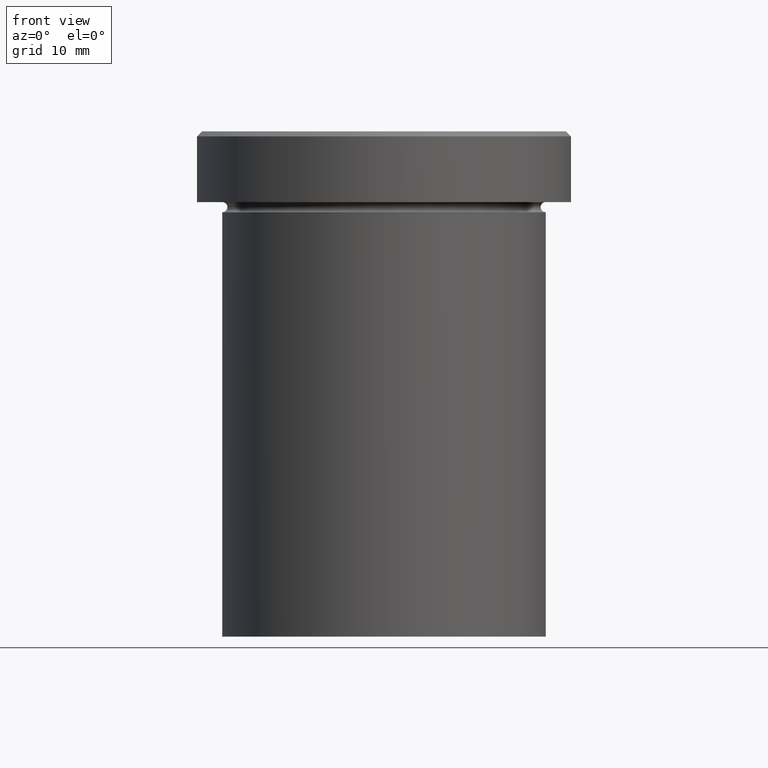
[diagram: clean part render]
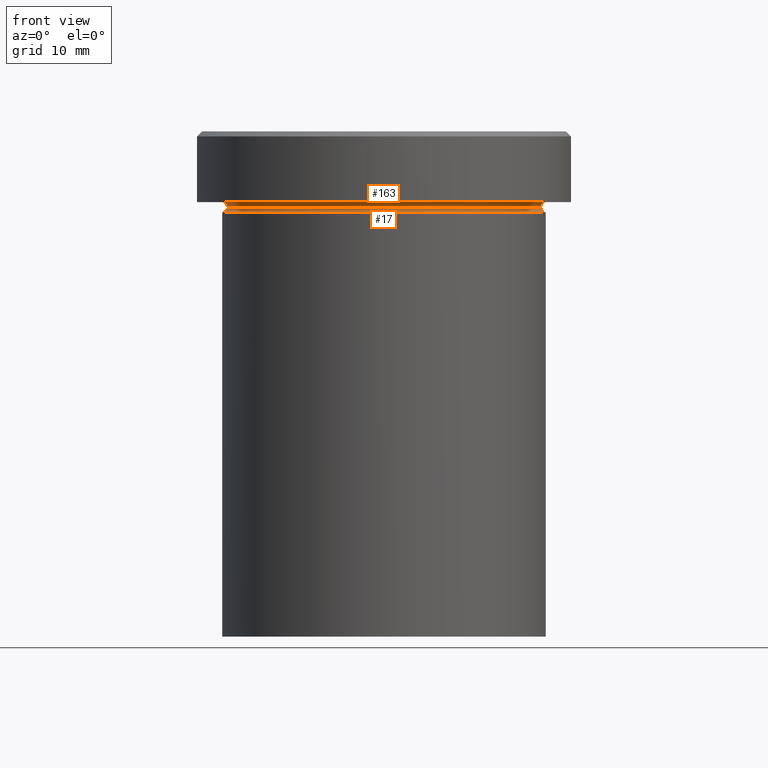
[diagram: same view with one multi-face feature highlighted, each face labeled with its STEP entity id]
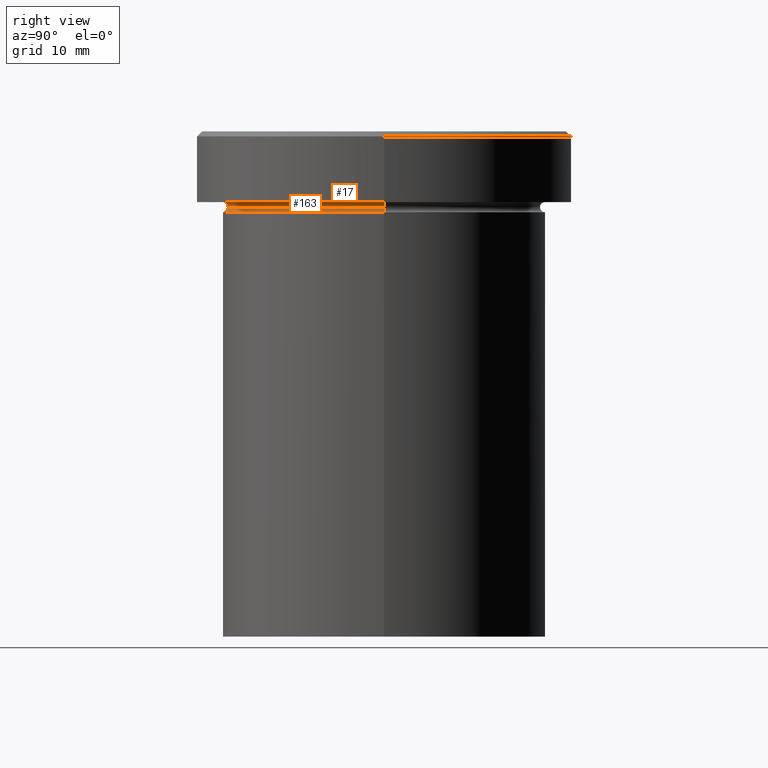
[diagram: same view with one multi-face feature highlighted, each face labeled with its STEP entity id]
A machine part, front view. The highlighted faces form ONE feature: a constant-radius fillet chain: 2 tangent blend faces with common blend radius 0.5 mm. The faces share edges in the B-rep.
A second angle (right view) of the same feature is appended — it is thin or edge-on in the first view.
Their STEP definitions:
[1] entity #163 (Torus):
#3 = AXIS2_PLACEMENT_3D ( 'NONE', #265, #100, #23 ) ;
#11 = CARTESIAN_POINT ( 'NONE',  ( -16.00000000000000000, 0.000000000000000000, -6.999999999999999112 ) ) ;
#16 = AXIS2_PLACEMENT_3D ( 'NONE', #160, #332, #136 ) ;
#23 = DIRECTION ( 'NONE',  ( -1.000000000000000000, 0.000000000000000000, 0.000000000000000000 ) ) ;
#35 = CARTESIAN_POINT ( 'NONE',  ( 0.000000000000000000, 0.000000000000000000, -7.500000000000000000 ) ) ;
#41 = CARTESIAN_POINT ( 'NONE',  ( 0.000000000000000000, 0.000000000000000000, -7.500000000000000000 ) ) ;
#67 = VERTEX_POINT ( 'NONE', #395 ) ;
#70 = VERTEX_POINT ( 'NONE', #227 ) ;
#100 = DIRECTION ( 'NONE',  ( -0.000000000000000000, -0.000000000000000000, 1.000000000000000000 ) ) ;
#103 = AXIS2_PLACEMENT_3D ( 'NONE', #41, #363, #300 ) ;
#136 = DIRECTION ( 'NONE',  ( -1.000000000000000000, -1.224646799147349509E-16, 0.000000000000000000 ) ) ;
#137 = EDGE_CURVE ( 'NONE', #67, #175, #219, .T. ) ;
#150 = DIRECTION ( 'NONE',  ( -1.000000000000000000, 0.000000000000000000, 0.000000000000000000 ) ) ;
#160 = CARTESIAN_POINT ( 'NONE',  ( 16.00000000000000000, 1.959434878635765131E-15, -7.500000000000000000 ) ) ;
#163 = ADVANCED_FACE ( 'NONE', ( #211 ), #326, .F. ) ;
#175 = VERTEX_POINT ( 'NONE', #11 ) ;
#190 = ORIENTED_EDGE ( 'NONE', *, *, #262, .F. ) ;
#199 = CIRCLE ( 'NONE', #16, 0.5000000000000004441 ) ;
#211 = FACE_OUTER_BOUND ( 'NONE', #331, .T. ) ;
#218 = DIRECTION ( 'NONE',  ( 0.000000000000000000, 0.000000000000000000, -1.000000000000000000 ) ) ;
#219 = CIRCLE ( 'NONE', #226, 0.5000000000000004441 ) ;
#220 = CIRCLE ( 'NONE', #3, 16.00000000000000000 ) ;
#226 = AXIS2_PLACEMENT_3D ( 'NONE', #277, #347, #386 ) ;
#227 = CARTESIAN_POINT ( 'NONE',  ( 16.00000000000000000, 1.959434878635765131E-15, -6.999999999999999112 ) ) ;
#242 = EDGE_CURVE ( 'NONE', #362, #70, #199, .T. ) ;
#243 = ORIENTED_EDGE ( 'NONE', *, *, #389, .T. ) ;
#262 = EDGE_CURVE ( 'NONE', #175, #70, #220, .T. ) ;
#265 = CARTESIAN_POINT ( 'NONE',  ( 0.000000000000000000, 0.000000000000000000, -6.999999999999999112 ) ) ;
#266 = ORIENTED_EDGE ( 'NONE', *, *, #137, .F. ) ;
#277 = CARTESIAN_POINT ( 'NONE',  ( -16.00000000000000000, 0.000000000000000000, -7.500000000000000000 ) ) ;
#290 = CIRCLE ( 'NONE', #103, 15.50000000000000000 ) ;
#295 = CARTESIAN_POINT ( 'NONE',  ( 15.50000000000000000, 0.000000000000000000, -7.500000000000000000 ) ) ;
#300 = DIRECTION ( 'NONE',  ( 1.000000000000000000, 0.000000000000000000, 0.000000000000000000 ) ) ;
#326 = TOROIDAL_SURFACE ( 'NONE', #354, 16.00000000000000000, 0.5000000000000000000 ) ;
#331 = EDGE_LOOP ( 'NONE', ( #243, #385, #190, #266 ) ) ;
#332 = DIRECTION ( 'NONE',  ( -1.224646799147353207E-16, 1.000000000000000000, 0.000000000000000000 ) ) ;
#347 = DIRECTION ( 'NONE',  ( -0.000000000000000000, -1.000000000000000000, -0.000000000000000000 ) ) ;
#354 = AXIS2_PLACEMENT_3D ( 'NONE', #35, #218, #150 ) ;
#362 = VERTEX_POINT ( 'NONE', #295 ) ;
#363 = DIRECTION ( 'NONE',  ( -0.000000000000000000, -0.000000000000000000, 1.000000000000000000 ) ) ;
#385 = ORIENTED_EDGE ( 'NONE', *, *, #242, .T. ) ;
#386 = DIRECTION ( 'NONE',  ( 0.000000000000000000, 0.000000000000000000, -1.000000000000000000 ) ) ;
#389 = EDGE_CURVE ( 'NONE', #67, #362, #290, .T. ) ;
#395 = CARTESIAN_POINT ( 'NONE',  ( -15.50000000000000000, 1.928818708657081344E-15, -7.500000000000000000 ) ) ;
[2] entity #17 (Torus):
#12 = AXIS2_PLACEMENT_3D ( 'NONE', #257, #387, #224 ) ;
#14 = DIRECTION ( 'NONE',  ( 1.000000000000000000, 0.000000000000000000, 0.000000000000000000 ) ) ;
#17 = ADVANCED_FACE ( 'NONE', ( #149 ), #85, .F. ) ;
#25 = DIRECTION ( 'NONE',  ( 0.000000000000000000, 0.000000000000000000, -1.000000000000000000 ) ) ;
#26 = EDGE_CURVE ( 'NONE', #168, #268, #202, .T. ) ;
#29 = EDGE_CURVE ( 'NONE', #67, #168, #309, .T. ) ;
#41 = CARTESIAN_POINT ( 'NONE',  ( 0.000000000000000000, 0.000000000000000000, -7.500000000000000000 ) ) ;
#67 = VERTEX_POINT ( 'NONE', #395 ) ;
#71 = EDGE_CURVE ( 'NONE', #362, #268, #317, .T. ) ;
#85 = TOROIDAL_SURFACE ( 'NONE', #216, 16.00000000000000000, 0.5000000000000000000 ) ;
#92 = EDGE_LOOP ( 'NONE', ( #110, #98, #392, #306 ) ) ;
#98 = ORIENTED_EDGE ( 'NONE', *, *, #29, .T. ) ;
#103 = AXIS2_PLACEMENT_3D ( 'NONE', #41, #363, #300 ) ;
#110 = ORIENTED_EDGE ( 'NONE', *, *, #389, .F. ) ;
#114 = CARTESIAN_POINT ( 'NONE',  ( -16.00000000000000000, 1.959434878635765131E-15, -8.000000000000000000 ) ) ;
#122 = DIRECTION ( 'NONE',  ( -0.000000000000000000, -0.000000000000000000, 1.000000000000000000 ) ) ;
#123 = DIRECTION ( 'NONE',  ( -0.000000000000000000, -0.000000000000000000, 1.000000000000000000 ) ) ;
#149 = FACE_OUTER_BOUND ( 'NONE', #92, .T. ) ;
#153 = CARTESIAN_POINT ( 'NONE',  ( 0.000000000000000000, 0.000000000000000000, -7.500000000000000000 ) ) ;
#168 = VERTEX_POINT ( 'NONE', #114 ) ;
#183 = AXIS2_PLACEMENT_3D ( 'NONE', #289, #123, #260 ) ;
#201 = CARTESIAN_POINT ( 'NONE',  ( 16.00000000000000000, 0.000000000000000000, -8.000000000000000000 ) ) ;
#202 = CIRCLE ( 'NONE', #183, 16.00000000000000000 ) ;
#216 = AXIS2_PLACEMENT_3D ( 'NONE', #153, #122, #14 ) ;
#224 = DIRECTION ( 'NONE',  ( -1.000000000000000000, 1.224646799147349509E-16, 0.000000000000000000 ) ) ;
#257 = CARTESIAN_POINT ( 'NONE',  ( -16.00000000000000000, 1.959434878635765131E-15, -7.500000000000000000 ) ) ;
#260 = DIRECTION ( 'NONE',  ( 1.000000000000000000, 0.000000000000000000, 0.000000000000000000 ) ) ;
#268 = VERTEX_POINT ( 'NONE', #201 ) ;
#289 = CARTESIAN_POINT ( 'NONE',  ( 0.000000000000000000, 0.000000000000000000, -8.000000000000000000 ) ) ;
#290 = CIRCLE ( 'NONE', #103, 15.50000000000000000 ) ;
#295 = CARTESIAN_POINT ( 'NONE',  ( 15.50000000000000000, 0.000000000000000000, -7.500000000000000000 ) ) ;
#300 = DIRECTION ( 'NONE',  ( 1.000000000000000000, 0.000000000000000000, 0.000000000000000000 ) ) ;
#301 = DIRECTION ( 'NONE',  ( 0.000000000000000000, -1.000000000000000000, 0.000000000000000000 ) ) ;
#306 = ORIENTED_EDGE ( 'NONE', *, *, #71, .F. ) ;
#309 = CIRCLE ( 'NONE', #12, 0.5000000000000004441 ) ;
#317 = CIRCLE ( 'NONE', #388, 0.5000000000000004441 ) ;
#359 = CARTESIAN_POINT ( 'NONE',  ( 16.00000000000000000, 0.000000000000000000, -7.500000000000000000 ) ) ;
#362 = VERTEX_POINT ( 'NONE', #295 ) ;
#363 = DIRECTION ( 'NONE',  ( -0.000000000000000000, -0.000000000000000000, 1.000000000000000000 ) ) ;
#387 = DIRECTION ( 'NONE',  ( 1.224646799147353207E-16, 1.000000000000000000, 0.000000000000000000 ) ) ;
#388 = AXIS2_PLACEMENT_3D ( 'NONE', #359, #301, #25 ) ;
#389 = EDGE_CURVE ( 'NONE', #67, #362, #290, .T. ) ;
#392 = ORIENTED_EDGE ( 'NONE', *, *, #26, .T. ) ;
#395 = CARTESIAN_POINT ( 'NONE',  ( -15.50000000000000000, 1.928818708657081344E-15, -7.500000000000000000 ) ) ;